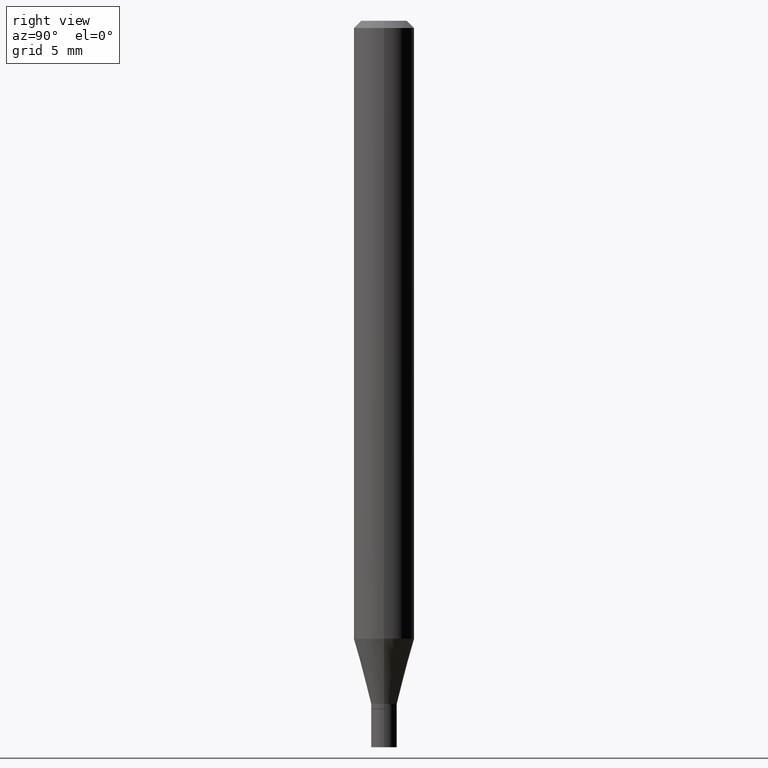
[diagram: clean part render]
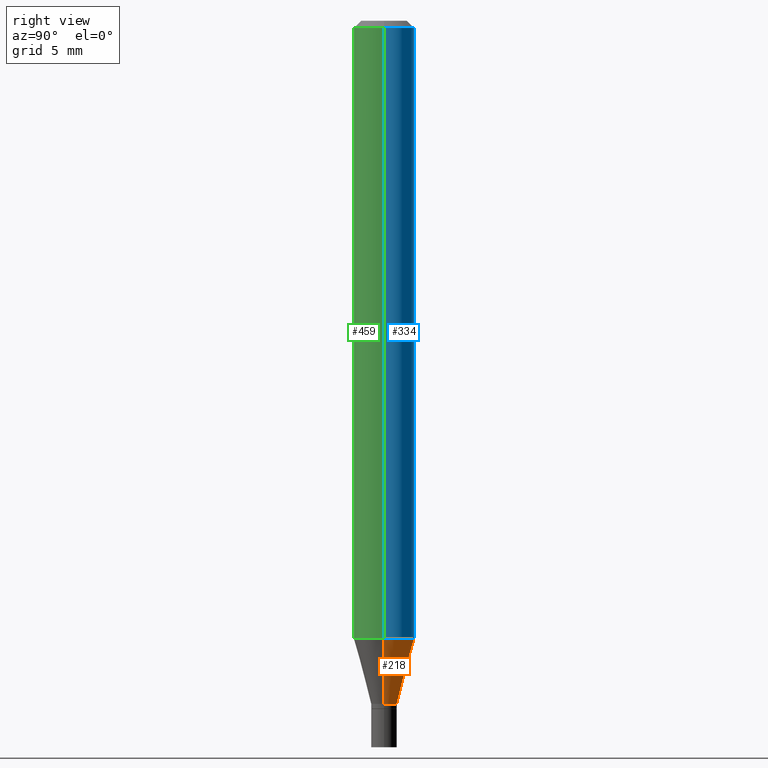
[diagram: same view with three faces highlighted in distinct colors, each labeled with its STEP entity id]
A machine part, right view with three faces highlighted in distinct colors.
Their STEP definitions:

[orange] entity #218 — the highlighted conical surface has half-angle 15 deg.
#51 = VERTEX_POINT ( 'NONE', #272 ) ;
#66 = DIRECTION ( 'NONE',  ( 1.000000000000000000, -6.982962677686261189E-15, 0.000000000000000000 ) ) ;
#69 = CARTESIAN_POINT ( 'NONE',  ( -0.02649999999999992292, -4.736440603461831672E-15, -1.410500000000000087 ) ) ;
#76 = DIRECTION ( 'NONE',  ( -2.445468806185136597E-29, 3.491481338843145583E-15, 1.000000000000000000 ) ) ;
#78 = VERTEX_POINT ( 'NONE', #378 ) ;
#85 = EDGE_CURVE ( 'NONE', #51, #125, #171, .T. ) ;
#98 = CARTESIAN_POINT ( 'NONE',  ( 3.449333751124135470E-29, -4.924734428438257994E-15, -1.410500000000000087 ) ) ;
#108 = AXIS2_PLACEMENT_3D ( 'NONE', #259, #76, #294 ) ;
#114 = DIRECTION ( 'NONE',  ( -2.445468806185136597E-29, 3.491481338843145583E-15, 1.000000000000000000 ) ) ;
#118 = VECTOR ( 'NONE', #352, 39.37007874015748143 ) ;
#125 = VERTEX_POINT ( 'NONE', #382 ) ;
#126 = AXIS2_PLACEMENT_3D ( 'NONE', #98, #114, #66 ) ;
#129 = DIRECTION ( 'NONE',  ( 0.2588190451025214611, 1.565188264969620982E-15, 0.9659258262890679791 ) ) ;
#147 = EDGE_LOOP ( 'NONE', ( #168, #256, #392, #187 ) ) ;
#164 = CIRCLE ( 'NONE', #233, 0.02649999999999992292 ) ;
#168 = ORIENTED_EDGE ( 'NONE', *, *, #393, .T. ) ;
#171 = LINE ( 'NONE', #443, #438 ) ;
#178 = CARTESIAN_POINT ( 'NONE',  ( 3.449333751124135470E-29, -4.924734428438257994E-15, -1.410500000000000087 ) ) ;
#187 = ORIENTED_EDGE ( 'NONE', *, *, #85, .F. ) ;
#218 = ADVANCED_FACE ( 'NONE', ( #413 ), #316, .T. ) ;
#227 = DIRECTION ( 'NONE',  ( 1.000000000000000000, -6.982962677686261189E-15, 0.000000000000000000 ) ) ;
#233 = AXIS2_PLACEMENT_3D ( 'NONE', #178, #436, #227 ) ;
#249 = VERTEX_POINT ( 'NONE', #283 ) ;
#256 = ORIENTED_EDGE ( 'NONE', *, *, #257, .T. ) ;
#257 = EDGE_CURVE ( 'NONE', #249, #78, #458, .T. ) ;
#259 = CARTESIAN_POINT ( 'NONE',  ( 3.120775653135857789E-29, -4.455640541429573595E-15, -1.276146170927520584 ) ) ;
#272 = CARTESIAN_POINT ( 'NONE',  ( 0.02649999999999992292, -5.109782939396942894E-15, -1.410500000000000087 ) ) ;
#283 = CARTESIAN_POINT ( 'NONE',  ( -0.02649999999999992292, -4.373995967520671326E-15, -1.410500000000000087 ) ) ;
#294 = DIRECTION ( 'NONE',  ( 1.000000000000000000, -6.982962677686262766E-15, 0.000000000000000000 ) ) ;
#297 = CIRCLE ( 'NONE', #108, 0.06250000000000000000 ) ;
#316 = CONICAL_SURFACE ( 'NONE', #126, 0.02649999999999992292, 0.2617993877991501850 ) ;
#352 = DIRECTION ( 'NONE',  ( -0.2588190451025214611, 5.211531920934550253E-15, 0.9659258262890679791 ) ) ;
#378 = CARTESIAN_POINT ( 'NONE',  ( -0.06250000000000000000, -4.011551331579510979E-15, -1.276146170927520584 ) ) ;
#382 = CARTESIAN_POINT ( 'NONE',  ( 0.06250000000000000000, -4.892075708784966054E-15, -1.276146170927520584 ) ) ;
#392 = ORIENTED_EDGE ( 'NONE', *, *, #398, .F. ) ;
#393 = EDGE_CURVE ( 'NONE', #51, #249, #164, .T. ) ;
#398 = EDGE_CURVE ( 'NONE', #125, #78, #297, .T. ) ;
#413 = FACE_OUTER_BOUND ( 'NONE', #147, .T. ) ;
#436 = DIRECTION ( 'NONE',  ( -2.445468806185136597E-29, 3.491481338843145583E-15, 1.000000000000000000 ) ) ;
#438 = VECTOR ( 'NONE', #129, 39.37007874015748143 ) ;
#443 = CARTESIAN_POINT ( 'NONE',  ( 0.02649999999999992292, -5.109782939396942894E-15, -1.410500000000000087 ) ) ;
#458 = LINE ( 'NONE', #69, #118 ) ;

[blue] entity #334 — the highlighted cylindrical surface (edge-blend (fillet) strip) has radius 1.5875 mm, axis along (-0, 0, 1).
#3 = ORIENTED_EDGE ( 'NONE', *, *, #446, .F. ) ;
#22 = CYLINDRICAL_SURFACE ( 'NONE', #72, 0.06250000000000000000 ) ;
#35 = ORIENTED_EDGE ( 'NONE', *, *, #383, .T. ) ;
#46 = DIRECTION ( 'NONE',  ( -2.445468806185136877E-29, 3.491481338843145188E-15, 1.000000000000000000 ) ) ;
#65 = LINE ( 'NONE', #351, #205 ) ;
#72 = AXIS2_PLACEMENT_3D ( 'NONE', #391, #219, #100 ) ;
#76 = DIRECTION ( 'NONE',  ( -2.445468806185136597E-29, 3.491481338843145583E-15, 1.000000000000000000 ) ) ;
#78 = VERTEX_POINT ( 'NONE', #378 ) ;
#86 = CARTESIAN_POINT ( 'NONE',  ( 0.06250000000000000000, -4.364351673553916694E-16, 3.047610484872459871E-30 ) ) ;
#92 = VECTOR ( 'NONE', #46, 39.37007874015748143 ) ;
#99 = AXIS2_PLACEMENT_3D ( 'NONE', #349, #180, #424 ) ;
#100 = DIRECTION ( 'NONE',  ( 1.000000000000000000, -6.982962677686266711E-15, 4.876176775795935793E-29 ) ) ;
#102 = DIRECTION ( 'NONE',  ( -2.445468806185136877E-29, 3.491481338843145188E-15, 1.000000000000000000 ) ) ;
#108 = AXIS2_PLACEMENT_3D ( 'NONE', #259, #76, #294 ) ;
#125 = VERTEX_POINT ( 'NONE', #382 ) ;
#159 = ORIENTED_EDGE ( 'NONE', *, *, #398, .T. ) ;
#160 = CARTESIAN_POINT ( 'NONE',  ( -0.06250000000000000000, -1.809917170906047524E-15, -0.01499999999999999944 ) ) ;
#180 = DIRECTION ( 'NONE',  ( -2.445468806185136597E-29, 3.491481338843145583E-15, 1.000000000000000000 ) ) ;
#205 = VECTOR ( 'NONE', #102, 39.37007874015748143 ) ;
#217 = EDGE_LOOP ( 'NONE', ( #159, #35, #358, #3 ) ) ;
#219 = DIRECTION ( 'NONE',  ( -2.445468806185136597E-29, 3.491481338843145583E-15, 1.000000000000000000 ) ) ;
#259 = CARTESIAN_POINT ( 'NONE',  ( 3.120775653135857789E-29, -4.455640541429573595E-15, -1.276146170927520584 ) ) ;
#294 = DIRECTION ( 'NONE',  ( 1.000000000000000000, -6.982962677686262766E-15, 0.000000000000000000 ) ) ;
#297 = CIRCLE ( 'NONE', #108, 0.06250000000000000000 ) ;
#311 = EDGE_CURVE ( 'NONE', #376, #457, #331, .T. ) ;
#326 = LINE ( 'NONE', #86, #92 ) ;
#331 = CIRCLE ( 'NONE', #99, 0.06250000000000000000 ) ;
#334 = ADVANCED_FACE ( 'NONE', ( #455 ), #22, .T. ) ;
#349 = CARTESIAN_POINT ( 'NONE',  ( 3.668203209277705088E-31, -5.237222008264718399E-17, -0.01499999999999999944 ) ) ;
#351 = CARTESIAN_POINT ( 'NONE',  ( -0.06250000000000000000, 4.440892098500626162E-16, -3.074334431409316114E-30 ) ) ;
#358 = ORIENTED_EDGE ( 'NONE', *, *, #311, .F. ) ;
#376 = VERTEX_POINT ( 'NONE', #422 ) ;
#378 = CARTESIAN_POINT ( 'NONE',  ( -0.06250000000000000000, -4.011551331579510979E-15, -1.276146170927520584 ) ) ;
#382 = CARTESIAN_POINT ( 'NONE',  ( 0.06250000000000000000, -4.892075708784966054E-15, -1.276146170927520584 ) ) ;
#383 = EDGE_CURVE ( 'NONE', #78, #457, #65, .T. ) ;
#391 = CARTESIAN_POINT ( 'NONE',  ( 0.000000000000000000, 0.000000000000000000, 0.000000000000000000 ) ) ;
#398 = EDGE_CURVE ( 'NONE', #125, #78, #297, .T. ) ;
#422 = CARTESIAN_POINT ( 'NONE',  ( 0.06250000000000000000, -4.888073874380388472E-16, -0.01499999999999999944 ) ) ;
#424 = DIRECTION ( 'NONE',  ( 1.000000000000000000, -6.982962677686266711E-15, 0.000000000000000000 ) ) ;
#446 = EDGE_CURVE ( 'NONE', #125, #376, #326, .T. ) ;
#455 = FACE_OUTER_BOUND ( 'NONE', #217, .T. ) ;
#457 = VERTEX_POINT ( 'NONE', #160 ) ;

[green] entity #459 — the highlighted cylindrical surface (edge-blend (fillet) strip) has radius 1.5875 mm, axis along (-0, 0, 1).
#1 = FACE_OUTER_BOUND ( 'NONE', #322, .T. ) ;
#28 = DIRECTION ( 'NONE',  ( -2.445468806185136597E-29, 3.491481338843145583E-15, 1.000000000000000000 ) ) ;
#37 = ORIENTED_EDGE ( 'NONE', *, *, #383, .F. ) ;
#41 = EDGE_CURVE ( 'NONE', #457, #376, #87, .T. ) ;
#46 = DIRECTION ( 'NONE',  ( -2.445468806185136877E-29, 3.491481338843145188E-15, 1.000000000000000000 ) ) ;
#65 = LINE ( 'NONE', #351, #205 ) ;
#78 = VERTEX_POINT ( 'NONE', #378 ) ;
#86 = CARTESIAN_POINT ( 'NONE',  ( 0.06250000000000000000, -4.364351673553916694E-16, 3.047610484872459871E-30 ) ) ;
#87 = CIRCLE ( 'NONE', #150, 0.06250000000000000000 ) ;
#92 = VECTOR ( 'NONE', #46, 39.37007874015748143 ) ;
#102 = DIRECTION ( 'NONE',  ( -2.445468806185136877E-29, 3.491481338843145188E-15, 1.000000000000000000 ) ) ;
#125 = VERTEX_POINT ( 'NONE', #382 ) ;
#133 = CIRCLE ( 'NONE', #381, 0.06250000000000000000 ) ;
#145 = DIRECTION ( 'NONE',  ( -2.445468806185136597E-29, 3.491481338843145583E-15, 1.000000000000000000 ) ) ;
#150 = AXIS2_PLACEMENT_3D ( 'NONE', #364, #28, #454 ) ;
#160 = CARTESIAN_POINT ( 'NONE',  ( -0.06250000000000000000, -1.809917170906047524E-15, -0.01499999999999999944 ) ) ;
#162 = CYLINDRICAL_SURFACE ( 'NONE', #170, 0.06250000000000000000 ) ;
#166 = ORIENTED_EDGE ( 'NONE', *, *, #337, .T. ) ;
#170 = AXIS2_PLACEMENT_3D ( 'NONE', #229, #191, #299 ) ;
#185 = DIRECTION ( 'NONE',  ( 1.000000000000000000, -6.982962677686262766E-15, 0.000000000000000000 ) ) ;
#191 = DIRECTION ( 'NONE',  ( -2.445468806185136597E-29, 3.491481338843145583E-15, 1.000000000000000000 ) ) ;
#205 = VECTOR ( 'NONE', #102, 39.37007874015748143 ) ;
#229 = CARTESIAN_POINT ( 'NONE',  ( 0.000000000000000000, 0.000000000000000000, 0.000000000000000000 ) ) ;
#299 = DIRECTION ( 'NONE',  ( 1.000000000000000000, -6.982962677686266711E-15, 4.876176775795935793E-29 ) ) ;
#322 = EDGE_LOOP ( 'NONE', ( #37, #166, #327, #386 ) ) ;
#326 = LINE ( 'NONE', #86, #92 ) ;
#327 = ORIENTED_EDGE ( 'NONE', *, *, #446, .T. ) ;
#337 = EDGE_CURVE ( 'NONE', #78, #125, #133, .T. ) ;
#351 = CARTESIAN_POINT ( 'NONE',  ( -0.06250000000000000000, 4.440892098500626162E-16, -3.074334431409316114E-30 ) ) ;
#362 = CARTESIAN_POINT ( 'NONE',  ( 3.120775653135857789E-29, -4.455640541429573595E-15, -1.276146170927520584 ) ) ;
#364 = CARTESIAN_POINT ( 'NONE',  ( 3.668203209277705088E-31, -5.237222008264718399E-17, -0.01499999999999999944 ) ) ;
#376 = VERTEX_POINT ( 'NONE', #422 ) ;
#378 = CARTESIAN_POINT ( 'NONE',  ( -0.06250000000000000000, -4.011551331579510979E-15, -1.276146170927520584 ) ) ;
#381 = AXIS2_PLACEMENT_3D ( 'NONE', #362, #145, #185 ) ;
#382 = CARTESIAN_POINT ( 'NONE',  ( 0.06250000000000000000, -4.892075708784966054E-15, -1.276146170927520584 ) ) ;
#383 = EDGE_CURVE ( 'NONE', #78, #457, #65, .T. ) ;
#386 = ORIENTED_EDGE ( 'NONE', *, *, #41, .F. ) ;
#422 = CARTESIAN_POINT ( 'NONE',  ( 0.06250000000000000000, -4.888073874380388472E-16, -0.01499999999999999944 ) ) ;
#446 = EDGE_CURVE ( 'NONE', #125, #376, #326, .T. ) ;
#454 = DIRECTION ( 'NONE',  ( 1.000000000000000000, -6.982962677686266711E-15, 0.000000000000000000 ) ) ;
#457 = VERTEX_POINT ( 'NONE', #160 ) ;
#459 = ADVANCED_FACE ( 'NONE', ( #1 ), #162, .T. ) ;